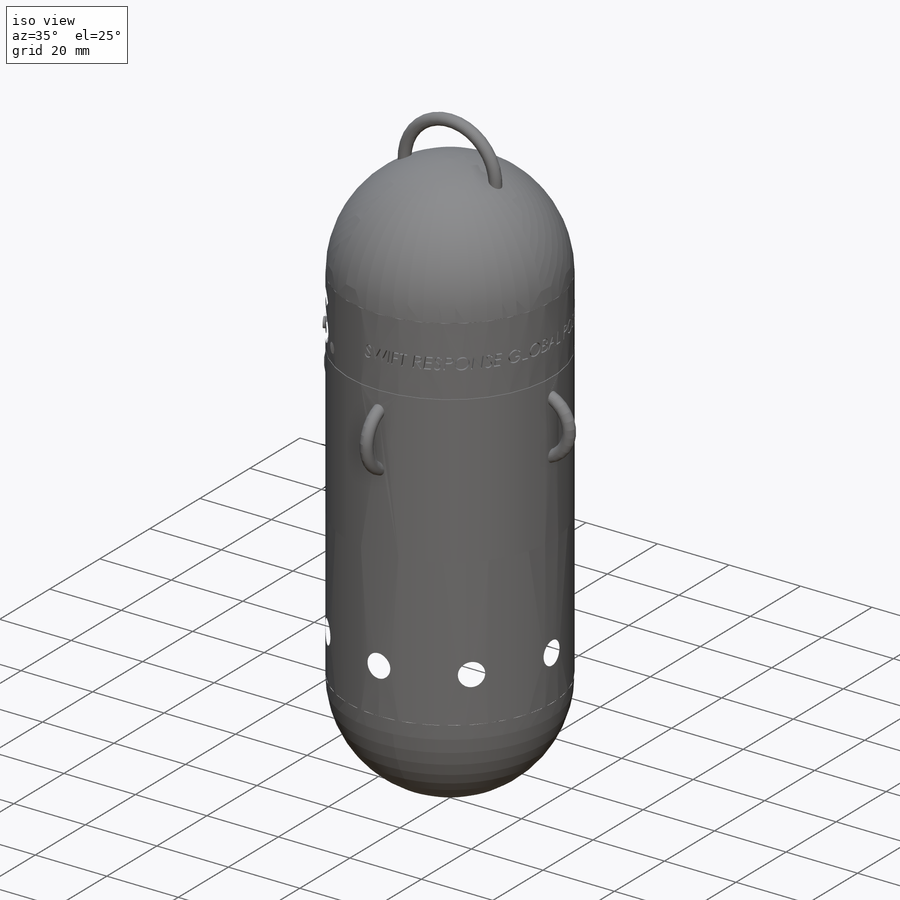
[diagram: iso view]
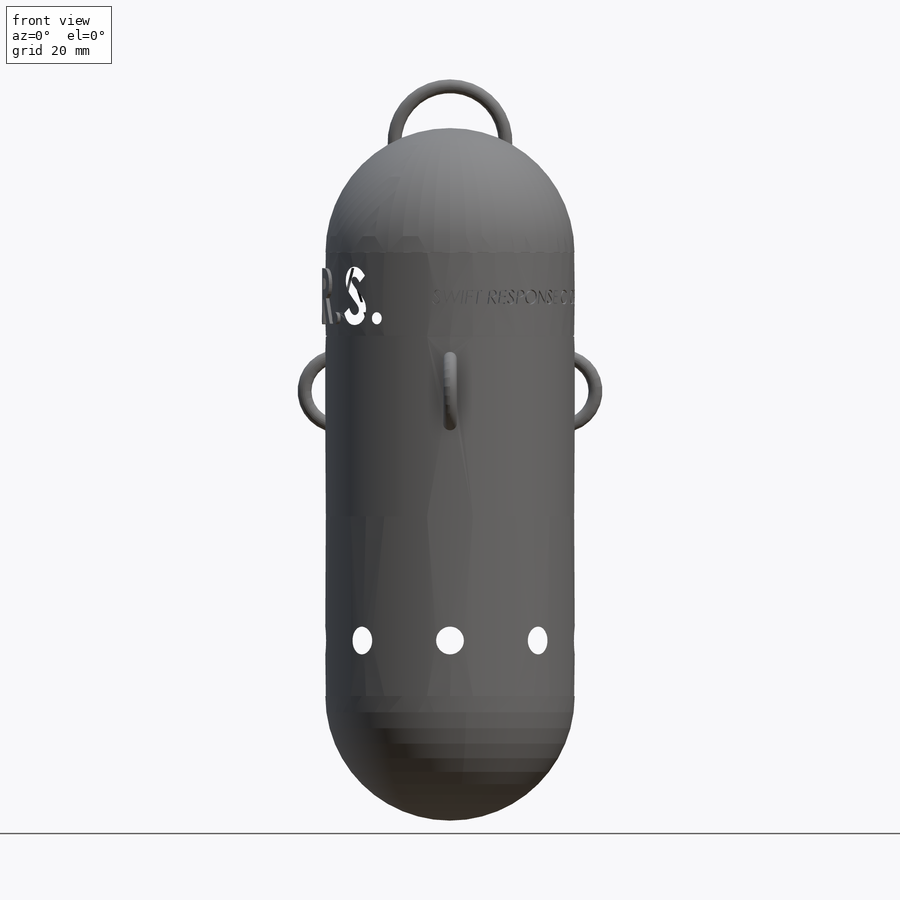
[diagram: front view]
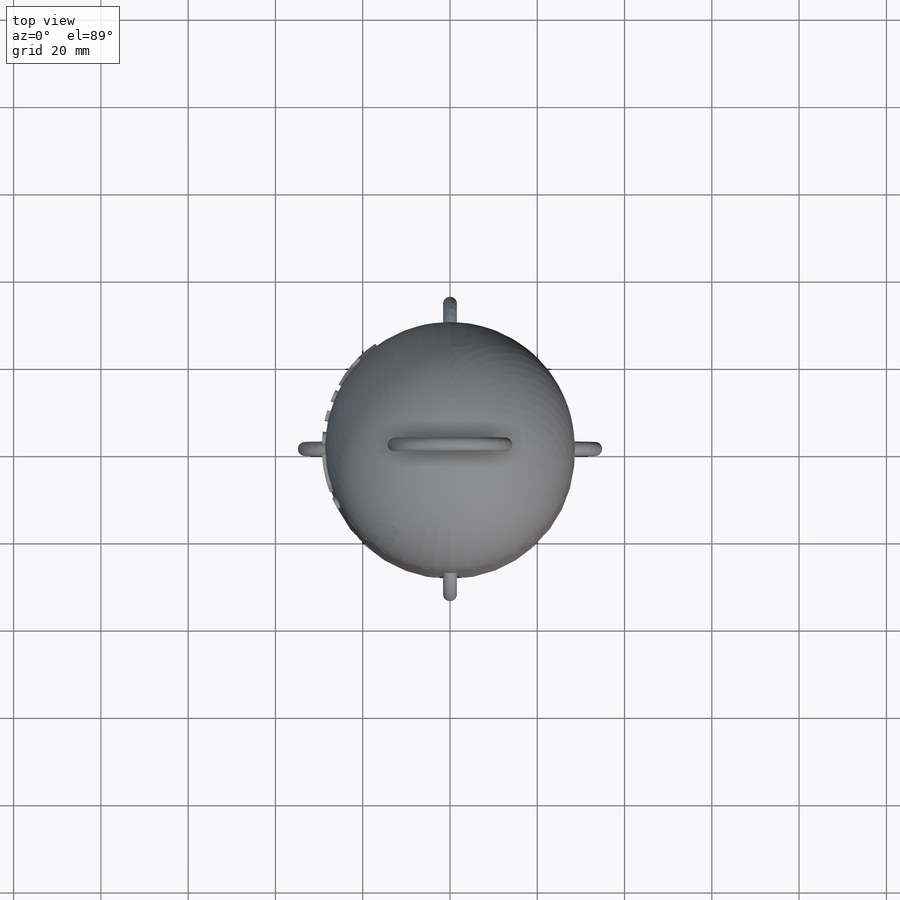
[diagram: top view]
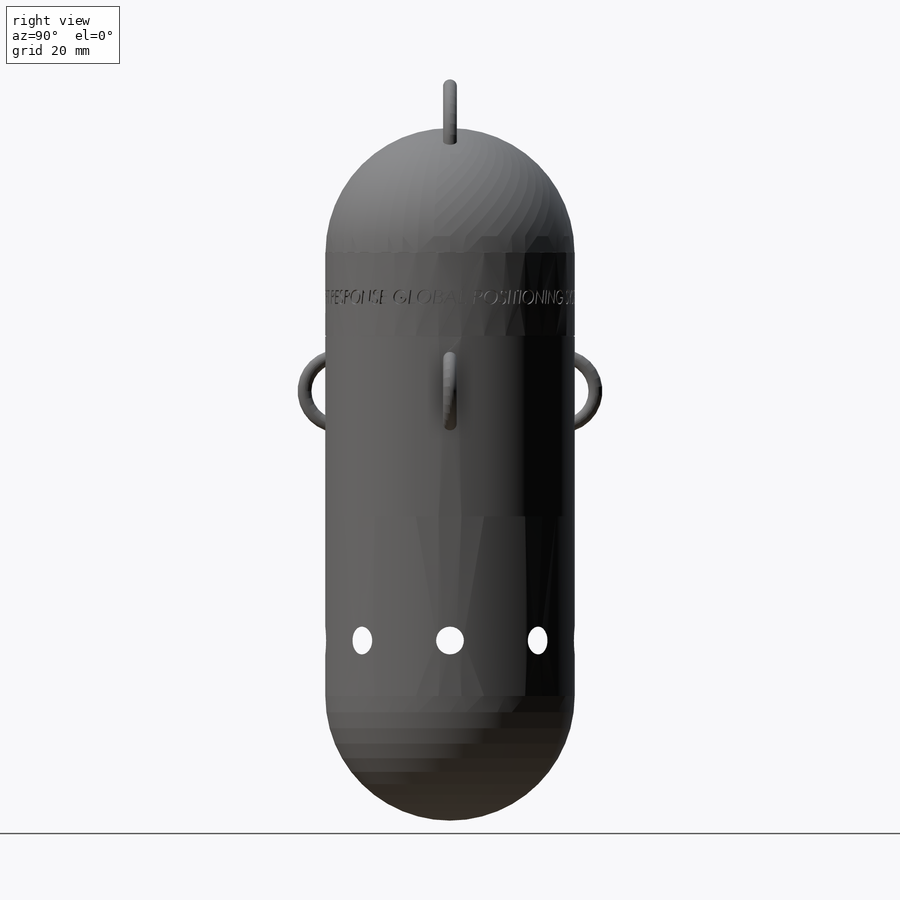
[diagram: right view]
SOLIDWORKS PART (.sldprt)
format: sldprt  version: not decoded by parser v0  size: 2,210,816 bytes
history: native  units: mm
features: sketch x7, plane x4, fillet x3, extrude x2, pattern_circular x2, cut_extrude x2, material x1, revolve x1 (+13 scaffold rows collapsed)
feature tree (35):
  scaffold x13  (default folders/planes/origin — collapsed)
  material  "Material <not specified>"
  sketch  "Sketch1"  dims[D1=25.4mm D2=3.175mm D3=101.6mm D4=101.6mm D5=0.0mm]
  revolve  "Revolve1"  Angle=360deg
  sketch  "Sketch4"  dims[c1.D2=22.225mm c1.D3=22.225mm c1.D1=127.0mm c2.D3=3.175mm]
  extrude  "Boss-Extrude1"  Depth=3.175mm
  fillet  "Fillet1"  Radius=1.5875mm
  sketch  "Sketch5"  dims[c1.D1=~16.211774mm c1.D2=19.05mm c1.D3=19.05mm c2.D1=3.175mm]
  extrude  "Boss-Extrude2"  Depth=3.175mm
  fillet  "Fillet2"  Radius=1.5875mm
  pattern_circular  "CirPattern11"  Count=4 Angle=360deg
  fillet  "Fillet3"  Radius=1.5875mm
  plane  "Plane1"  Offset=82.55mm
  sketch  "Sketch6"  dims[D1=57.15mm D2=~0.198437mm]
  cut_extrude  "Cut-Extrude1"  Depth=0.198437mm
  plane  "Plane2"  Offset=50.8mm
  sketch  "Sketch7"  dims[D1=~0.79375mm]
  plane  "Plane3"  Offset=50.8mm
  sketch  "Sketch8"  dims[D1=~0.79375mm]
  plane  "Plane4"  Offset=26.9875mm
  sketch  "Sketch9"  dims[D2=~3.537726mm D1=12.7mm]
  cut_extrude  "Cut-Extrude3"  Depth=1.5875mm
  pattern_circular  "CirPattern12"  Count=8 Angle=360deg
decode coverage: 17 of 17 modeling features carry decoded parameters
note: ~ marks probable driven/reference dimensions
note: suppression state not decoded; provenance and decode notes live in map.json
